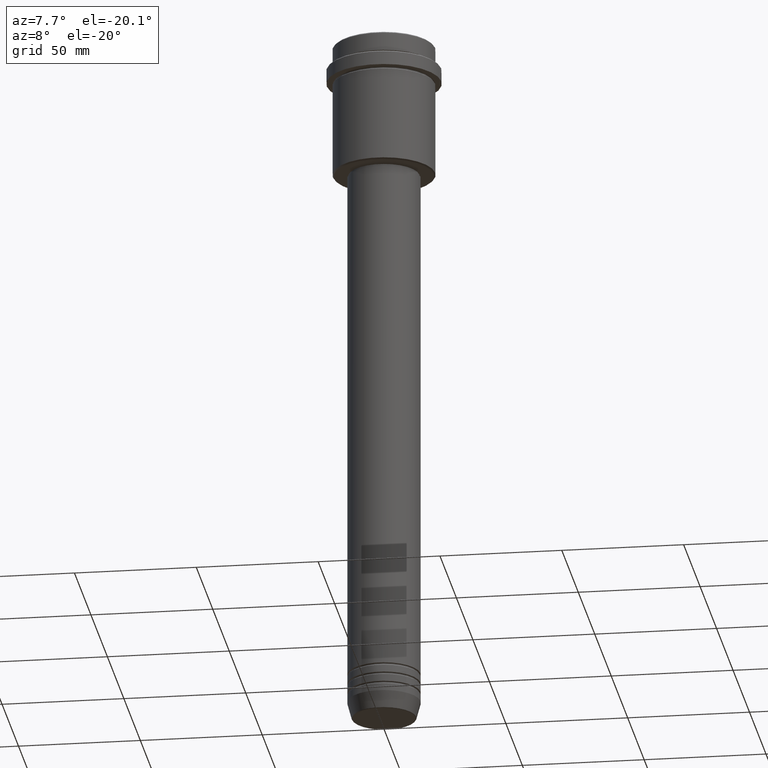
[diagram: clean part render]
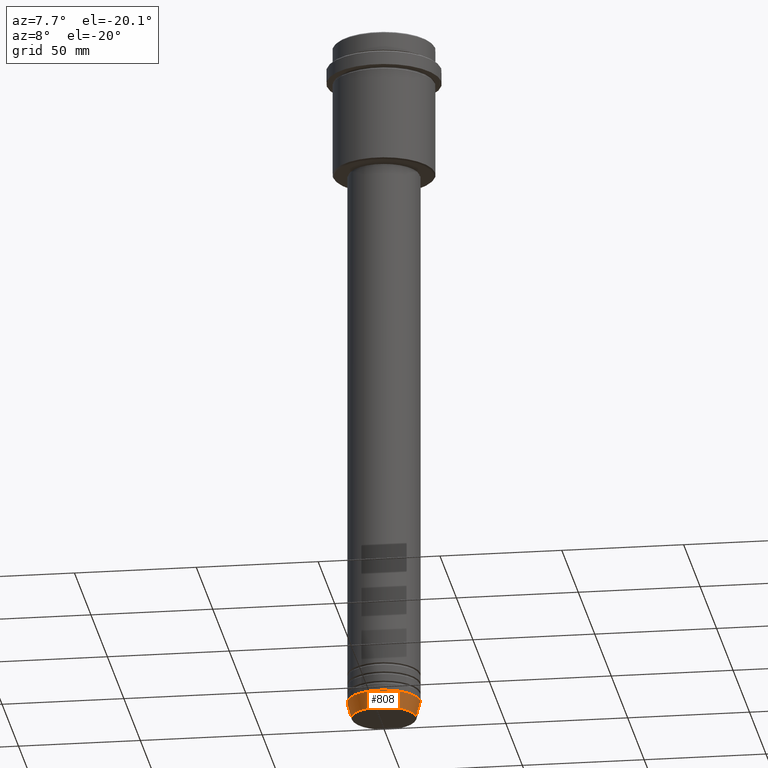
[diagram: same view with one face highlighted and labeled with its STEP entity id]
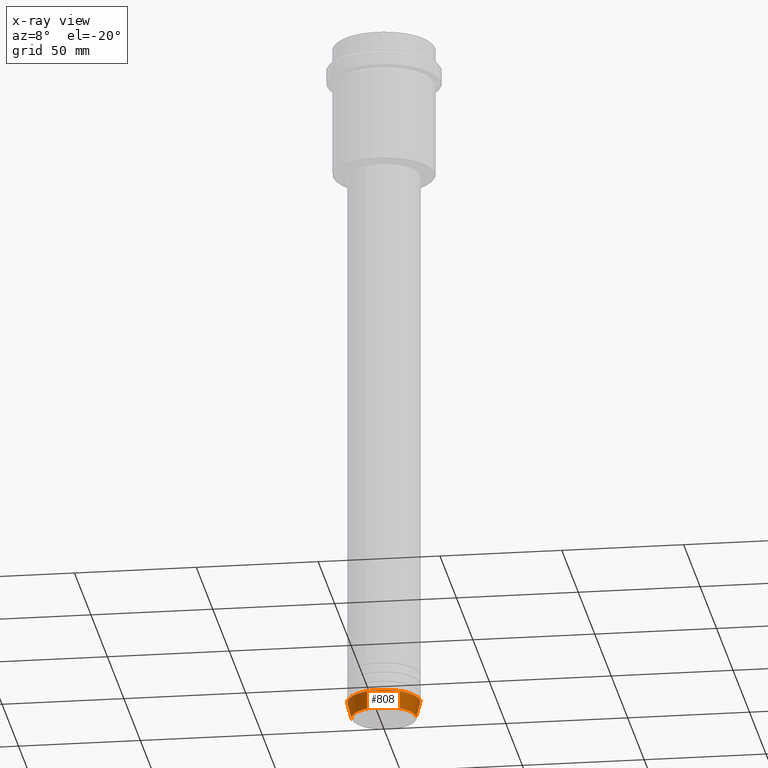
[diagram: x-ray of the same camera — body ghosted, the highlighted face saturated]
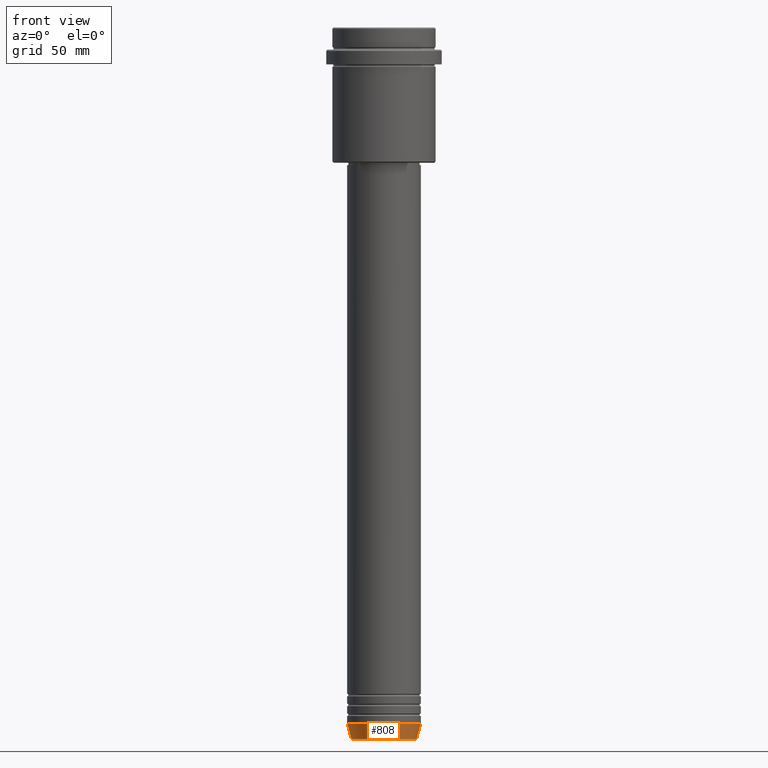
[diagram: same view with one face highlighted and labeled with its STEP entity id]
A machine part, auxiliary view. The second image highlights one B-rep face of the part: STEP entity #808.
The next image is the same camera in x-ray: the body ghosted, the highlighted face saturated — about 0% of this face is hidden behind the body in this view.
A second angle (front view) of the same face is appended — the face is thin or edge-on in the first view.
In plain terms, the highlighted conical surface has half-angle 15 deg.
Its self-contained STEP definition (entity closure, byte-faithful):
#109 = VERTEX_POINT ( 'NONE', #250 ) ;
#140 = LINE ( 'NONE', #595, #1350 ) ;
#161 = CARTESIAN_POINT ( 'NONE',  ( 0.000000000000000000, 0.000000000000000000, -283.0000000000000000 ) ) ;
#232 = CIRCLE ( 'NONE', #1074, 15.00000000000000000 ) ;
#247 = EDGE_CURVE ( 'NONE', #509, #1354, #1258, .T. ) ;
#250 = CARTESIAN_POINT ( 'NONE',  ( -15.00000000000000000, 1.836970198721029589E-15, -283.0000000000000000 ) ) ;
#260 = ORIENTED_EDGE ( 'NONE', *, *, #1173, .T. ) ;
#268 = DIRECTION ( 'NONE',  ( -0.000000000000000000, -0.000000000000000000, 1.000000000000000000 ) ) ;
#273 = AXIS2_PLACEMENT_3D ( 'NONE', #828, #834, #942 ) ;
#365 = CONICAL_SURFACE ( 'NONE', #411, 15.00000000000000000, 0.2617993877991500740 ) ;
#396 = EDGE_CURVE ( 'NONE', #1002, #109, #140, .T. ) ;
#411 = AXIS2_PLACEMENT_3D ( 'NONE', #161, #268, #602 ) ;
#439 = CARTESIAN_POINT ( 'NONE',  ( 0.000000000000000000, 0.000000000000000000, -283.0000000000000000 ) ) ;
#482 = ORIENTED_EDGE ( 'NONE', *, *, #571, .F. ) ;
#509 = VERTEX_POINT ( 'NONE', #632 ) ;
#571 = EDGE_CURVE ( 'NONE', #109, #1354, #232, .T. ) ;
#595 = CARTESIAN_POINT ( 'NONE',  ( -15.00000000000000000, 1.836970198721029589E-15, -283.0000000000000000 ) ) ;
#602 = DIRECTION ( 'NONE',  ( 1.000000000000000000, 0.000000000000000000, 0.000000000000000000 ) ) ;
#632 = CARTESIAN_POINT ( 'NONE',  ( 13.22365507213718772, 0.000000000000000000, -289.6294095225512706 ) ) ;
#716 = FACE_OUTER_BOUND ( 'NONE', #1051, .T. ) ;
#736 = CIRCLE ( 'NONE', #273, 13.22365507213718772 ) ;
#781 = DIRECTION ( 'NONE',  ( -0.000000000000000000, -0.000000000000000000, 1.000000000000000000 ) ) ;
#808 = ADVANCED_FACE ( 'NONE', ( #716 ), #365, .T. ) ;
#820 = VECTOR ( 'NONE', #1346, 1000.000000000000000 ) ;
#828 = CARTESIAN_POINT ( 'NONE',  ( 0.000000000000000000, 0.000000000000000000, -289.6294095225512706 ) ) ;
#831 = CARTESIAN_POINT ( 'NONE',  ( 15.00000000000000000, 0.000000000000000000, -283.0000000000000000 ) ) ;
#834 = DIRECTION ( 'NONE',  ( -0.000000000000000000, -0.000000000000000000, 1.000000000000000000 ) ) ;
#899 = CARTESIAN_POINT ( 'NONE',  ( -13.22365507213718772, 1.728200442216588386E-15, -289.6294095225512706 ) ) ;
#942 = DIRECTION ( 'NONE',  ( 1.000000000000000000, 0.000000000000000000, 0.000000000000000000 ) ) ;
#968 = ORIENTED_EDGE ( 'NONE', *, *, #247, .T. ) ;
#976 = CARTESIAN_POINT ( 'NONE',  ( 15.00000000000000000, 0.000000000000000000, -283.0000000000000000 ) ) ;
#1002 = VERTEX_POINT ( 'NONE', #899 ) ;
#1019 = DIRECTION ( 'NONE',  ( -0.2588190451025213501, 3.169619151431772337E-17, 0.9659258262890680902 ) ) ;
#1051 = EDGE_LOOP ( 'NONE', ( #1244, #260, #968, #482 ) ) ;
#1074 = AXIS2_PLACEMENT_3D ( 'NONE', #439, #781, #1314 ) ;
#1173 = EDGE_CURVE ( 'NONE', #1002, #509, #736, .T. ) ;
#1244 = ORIENTED_EDGE ( 'NONE', *, *, #396, .F. ) ;
#1258 = LINE ( 'NONE', #831, #820 ) ;
#1314 = DIRECTION ( 'NONE',  ( 1.000000000000000000, 0.000000000000000000, 0.000000000000000000 ) ) ;
#1346 = DIRECTION ( 'NONE',  ( 0.2588190451025213501, 0.000000000000000000, 0.9659258262890680902 ) ) ;
#1350 = VECTOR ( 'NONE', #1019, 1000.000000000000000 ) ;
#1354 = VERTEX_POINT ( 'NONE', #976 ) ;